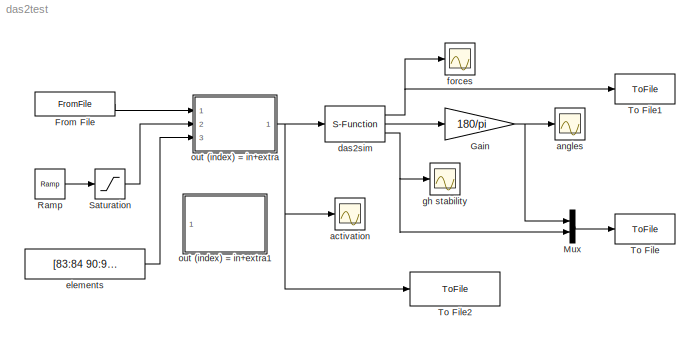
MODEL das2test
KIND model
CONFIG PostLoadFcn = , if any(exist('dsrtsu_mdlpostloadfcn', 'file') == [2, 3, 6]), try dsrtsu_mdlpostloadfcn('Execute', bdroot); catch fprintf('Error in PostLoadFcn (dsrtsu_mdlpostloadfcn) for model \"%s\":\\n %s\\n', bdroot, lasterr); end, end, \n
BLOCK [FromFile] From File
  FileName = initactmin.mat
  SID = 1
  SampleTime = 0.001
BLOCK [Gain] Gain
  Gain = 180/pi
  OutDataTypeStr = Inherit: Inherit via internal rule
  ParamDataTypeStr = Inherit: Inherit via internal rule
  SID = 2
  SaturateOnIntegerOverflow = off
BLOCK [Mux] Mux
  DisplayOption = bar
  Inputs = 2
  Ports = [2, 1]
  SID = 3
BLOCK [Reference] Ramp  REF=simulink/Sources/Ramp
  Ports = [0, 1]
  SID = 4
  SourceBlock = simulink/Sources/Ramp
  SourceType = Ramp
  VectorParams1D = on
  X0 = 0
  slope = 0.2
  start = 1
BLOCK [Saturate] Saturation
  InputPortMap = u0
  LowerLimit = 0
  Ports = [1, 1]
  SID = 5
  UpperLimit = 1
BLOCK [ToFile] To File
  Decimation = 10
  Filename = output.mat
  MatrixName = output
  Ports = [1]
  SID = 6
BLOCK [ToFile] To File1
  Decimation = 10
  Filename = forces.mat
  MatrixName = forces
  Ports = [1]
  SID = 7
BLOCK [ToFile] To File2
  Decimation = 20
  Filename = activations.mat
  MatrixName = act
  Ports = [1]
  SID = 8
BLOCK [Scope] activation
  NumInputPorts = 1
  Ports = [1]
  SID = 9
  ScopeSpecificationString = Simulink.scopes.TimeScopeBlockCfg('CurrentConfiguration', extmgr.ConfigurationSet(extmgr.Configuration('Core','General UI',true),extmgr.Configuration('Core','Source UI',true),extmgr.Configuration('Sources','WiredSimulink',true,'DataLoggingVariableName','ScopeData2','DataLoggingSaveFormat','StructureWithTime','DataLoggingDecimation','10','DataLoggingDecimateData',true,'DataLoggingLimitDataPoints',t...<+1682ch>
BLOCK [Scope] angles
  NumInputPorts = 1
  Ports = [1]
  SID = 10
  ScopeSpecificationString = Simulink.scopes.TimeScopeBlockCfg('CurrentConfiguration', extmgr.ConfigurationSet(extmgr.Configuration('Core','General UI',true),extmgr.Configuration('Core','Source UI',true),extmgr.Configuration('Sources','WiredSimulink',true,'DataLoggingSaveFormat','StructureWithTime','DataLoggingDecimation','10','DataLoggingDecimateData',true,'DataLoggingLimitDataPoints',true),extmgr.Configuration('Visuals','Ti...<+1640ch>
BLOCK [S-Function] das2sim
  EnableBusSupport = off
  FunctionName = das2sim
  Ports = [1, 3]
  SFcnIsStateOwnerBlock = off
  SFunctionDeploymentMode = off
  SID = 11
BLOCK [Constant] elements
  SID = 12
  Value = [83:84 90:92]
BLOCK [Scope] forces
  NumInputPorts = 1
  Ports = [1]
  SID = 13
  ScopeSpecificationString = Simulink.scopes.TimeScopeBlockCfg('CurrentConfiguration', extmgr.ConfigurationSet(extmgr.Configuration('Core','General UI',true),extmgr.Configuration('Core','Source UI',true),extmgr.Configuration('Sources','WiredSimulink',true,'DataLoggingVariableName','ScopeData3','DataLoggingSaveFormat','StructureWithTime','DataLoggingDecimation','10','DataLoggingDecimateData',true,'DataLoggingLimitDataPoints',t...<+1679ch>
BLOCK [Scope] gh stability
  NumInputPorts = 1
  Ports = [1]
  SID = 14
  ScopeSpecificationString = Simulink.scopes.TimeScopeBlockCfg('CurrentConfiguration', extmgr.ConfigurationSet(extmgr.Configuration('Core','General UI',true),extmgr.Configuration('Core','Source UI',true),extmgr.Configuration('Sources','WiredSimulink',true,'DataLoggingVariableName','ScopeData1','DataLoggingSaveFormat','StructureWithTime','DataLoggingDecimation','10','DataLoggingDecimateData',true,'DataLoggingLimitDataPoints',t...<+1697ch>
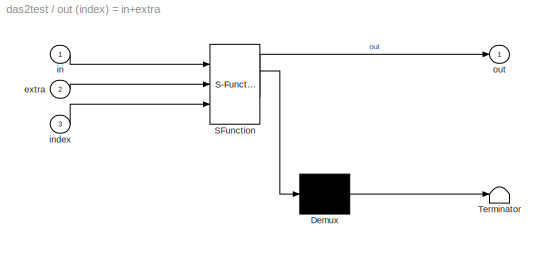
BLOCK [SubSystem] out (index) = in+extra
  ErrorFcn = Stateflow.Translate.translate
  PermitHierarchicalResolution = ExplicitOnly
  Ports = [3, 1]
  RequestExecContextInheritance = off
  SFBlockType = MATLAB Function
  SID = 15
  TreatAsAtomicUnit = on
  Variant = off
BLOCK [Demux] out (index) = in+extra/ Demux 
  Outputs = 1
  Ports = [1, 1]
  SID = 15::9
BLOCK [S-Function] out (index) = in+extra/ SFunction 
  EnableBusSupport = off
  FunctionName = sf_sfun
  PortCounts = [3 2]
  Ports = [3, 2]
  SFcnIsStateOwnerBlock = off
  SFunctionDeploymentMode = off
  SID = 15::8
  Tag = Stateflow S-Function das2test 2
BLOCK [Terminator] out (index) = in+extra/ Terminator 
  SID = 15::10
BLOCK [Inport] out (index) = in+extra/extra
  IconDisplay = Port number
  Port = 2
  SID = 15::2
BLOCK [Inport] out (index) = in+extra/in
  IconDisplay = Port number
  SID = 15::1
BLOCK [Inport] out (index) = in+extra/index
  IconDisplay = Port number
  Port = 3
  SID = 15::3
BLOCK [Outport] out (index) = in+extra/out
  IconDisplay = Port number
  SID = 15::7
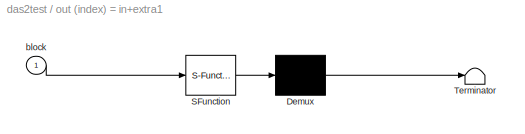
BLOCK [SubSystem] out (index) = in+extra1
  Commented = on
  ErrorFcn = Stateflow.Translate.translate
  PermitHierarchicalResolution = ExplicitOnly
  Ports = [1]
  RequestExecContextInheritance = off
  SFBlockType = MATLAB Function
  SID = 20
  TreatAsAtomicUnit = on
  Variant = off
BLOCK [Demux] out (index) = in+extra1/ Demux 
  Outputs = 1
  Ports = [1, 1]
  SID = 20::9
BLOCK [S-Function] out (index) = in+extra1/ SFunction 
  EnableBusSupport = off
  FunctionName = sf_sfun
  PortCounts = [1 1]
  Ports = [1, 1]
  SFcnIsStateOwnerBlock = off
  SFunctionDeploymentMode = off
  SID = 20::8
  Tag = Stateflow S-Function das2test 1
BLOCK [Terminator] out (index) = in+extra1/ Terminator 
  SID = 20::10
BLOCK [Inport] out (index) = in+extra1/block
  IconDisplay = Port number
  SID = 20::1
LINE From File:1 -> out (index) = in+extra:1
NET Gain:1 -> Mux:1, angles:1
LINE Mux:1 -> To File:1
LINE Ramp:1 -> Saturation:1
LINE Saturation:1 -> out (index) = in+extra:2
NET das2sim:1 -> To File1:1, forces:1
LINE das2sim:2 -> Gain:1
NET das2sim:3 -> Mux:2, gh stability:1
LINE elements:1 -> out (index) = in+extra:3
LINE out (index) = in+extra/ Demux :1 -> out (index) = in+extra/ Terminator :1
LINE out (index) = in+extra/ SFunction :1 -> out (index) = in+extra/ Demux :1
LINE out (index) = in+extra/ SFunction :2 -> out (index) = in+extra/out:1
LINE out (index) = in+extra/extra:1 -> out (index) = in+extra/ SFunction :2
LINE out (index) = in+extra/in:1 -> out (index) = in+extra/ SFunction :1
LINE out (index) = in+extra/index:1 -> out (index) = in+extra/ SFunction :3
LINE out (index) = in+extra1/ Demux :1 -> out (index) = in+extra1/ Terminator :1
LINE out (index) = in+extra1/ SFunction :1 -> out (index) = in+extra1/ Demux :1
LINE out (index) = in+extra1/block:1 -> out (index) = in+extra1/ SFunction :1
NET out (index) = in+extra:1 -> To File2:1, activation:1, das2sim:1
note: NET lines group one-source signal fan-out (src -> all destinations, sorted); 1:1 wires keep LINE
CHART out (index) = in+extra1 states=1 transitions=1
  STATE_LABEL 'eML_blk_kernel()'
CHART out (index) = in+extra states=1 transitions=1
  STATE_LABEL 'eML_blk_kernel()'
